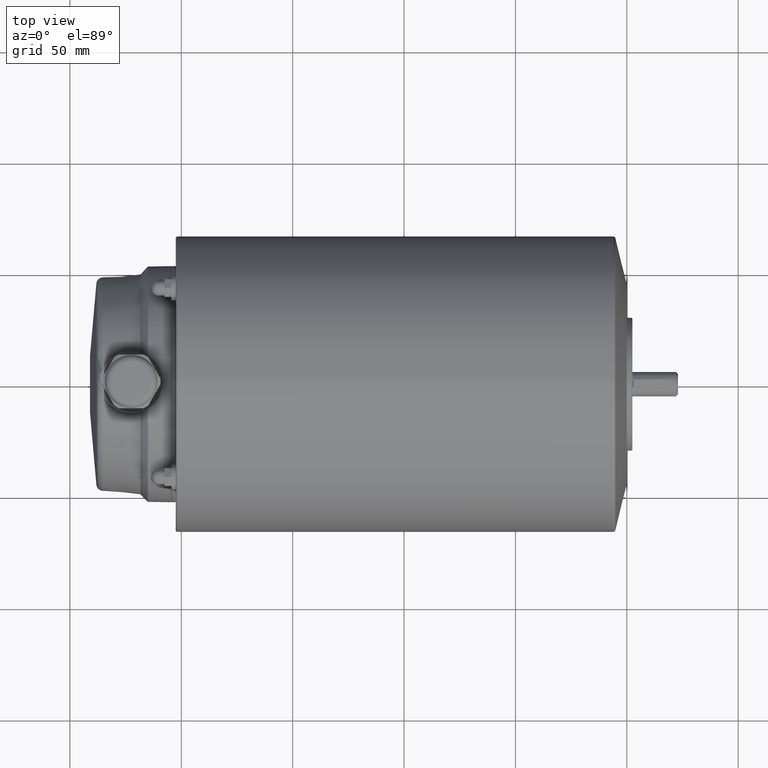
[diagram: clean part render]
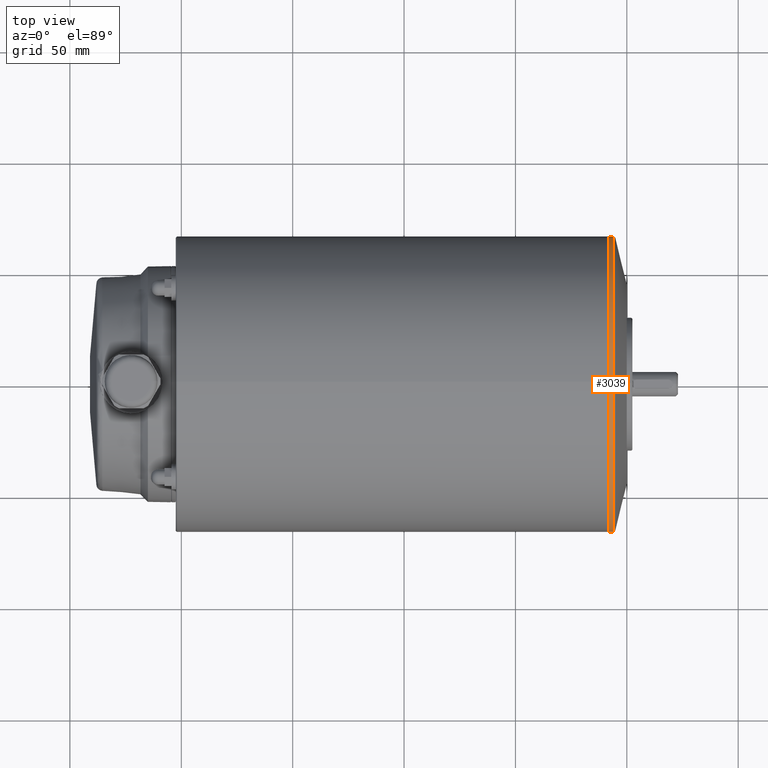
[diagram: same view with one face highlighted and labeled with its STEP entity id]
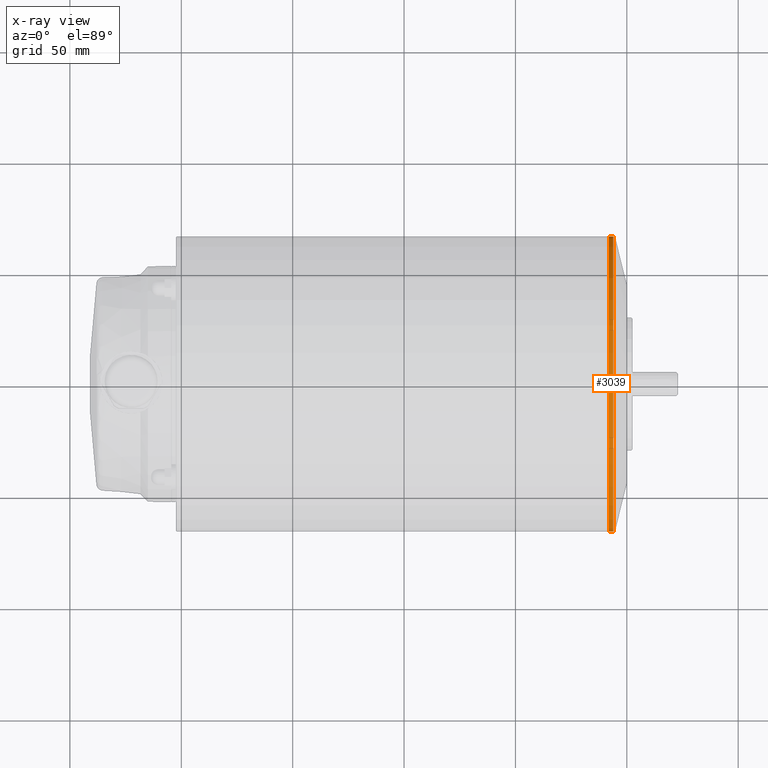
[diagram: x-ray of the same camera — body ghosted, the highlighted face saturated]
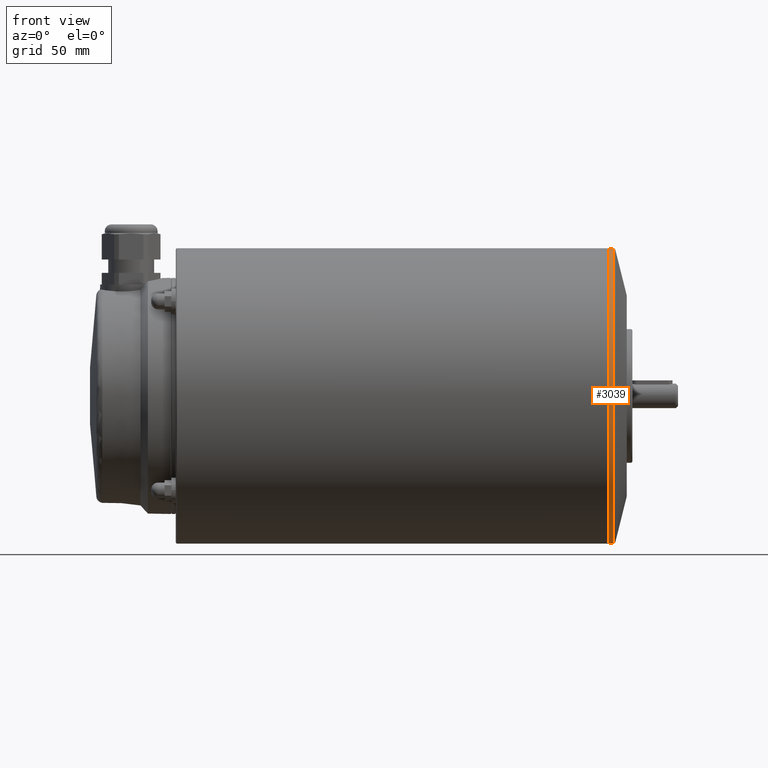
[diagram: same view with one face highlighted and labeled with its STEP entity id]
A machine part, top view. The second image highlights one B-rep face of the part: STEP entity #3039.
The next image is the same camera in x-ray: the body ghosted, the highlighted face saturated — about 0% of this face is hidden behind the body in this view.
A second angle (front view) of the same face is appended — the face is thin or edge-on in the first view.
In plain terms, the highlighted cylindrical surface (bore or boss wall) has radius 66.3 mm, axis along (-1, 0, 0).
Its self-contained STEP definition (entity closure, byte-faithful):
#178=CIRCLE('',#3227,66.3);
#179=CIRCLE('',#3229,66.3);
#318=ORIENTED_EDGE('',*,*,#818,.T.);
#319=ORIENTED_EDGE('',*,*,#817,.F.);
#817=EDGE_CURVE('',#1068,#1068,#178,.T.);
#818=EDGE_CURVE('',#1069,#1069,#179,.T.);
#1068=VERTEX_POINT('',#4231);
#1069=VERTEX_POINT('',#4234);
#1481=EDGE_LOOP('',(#318));
#1482=EDGE_LOOP('',(#319));
#1718=FACE_BOUND('',#1481,.T.);
#1719=FACE_BOUND('',#1482,.T.);
#1948=CYLINDRICAL_SURFACE('',#3228,66.3);
#3039=ADVANCED_FACE('',(#1718,#1719),#1948,.T.);
#3227=AXIS2_PLACEMENT_3D('',#4230,#3566,#3567);
#3228=AXIS2_PLACEMENT_3D('',#4232,#3568,#3569);
#3229=AXIS2_PLACEMENT_3D('',#4233,#3570,#3571);
#3566=DIRECTION('',(-1.,0.,0.));
#3567=DIRECTION('',(0.,0.,1.));
#3568=DIRECTION('',(-1.,0.,0.));
#3569=DIRECTION('',(0.,0.,1.));
#3570=DIRECTION('',(-1.,0.,0.));
#3571=DIRECTION('',(0.,0.,1.));
#4230=CARTESIAN_POINT('',(-7.99000000000003,0.,0.));
#4231=CARTESIAN_POINT('',(-7.99000000000003,0.,66.3));
#4232=CARTESIAN_POINT('',(-242.,0.,0.));
#4233=CARTESIAN_POINT('',(-6.09197208706649,0.,0.));
#4234=CARTESIAN_POINT('',(-6.09197208706649,0.,66.3));